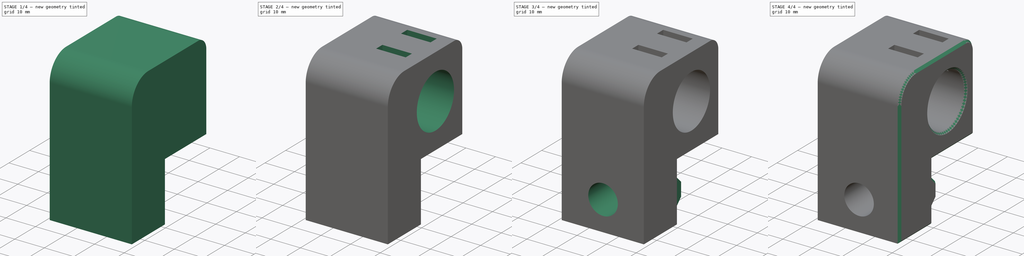
[diagram: build sequence overview — one tinted view per stage of 4, left to right]
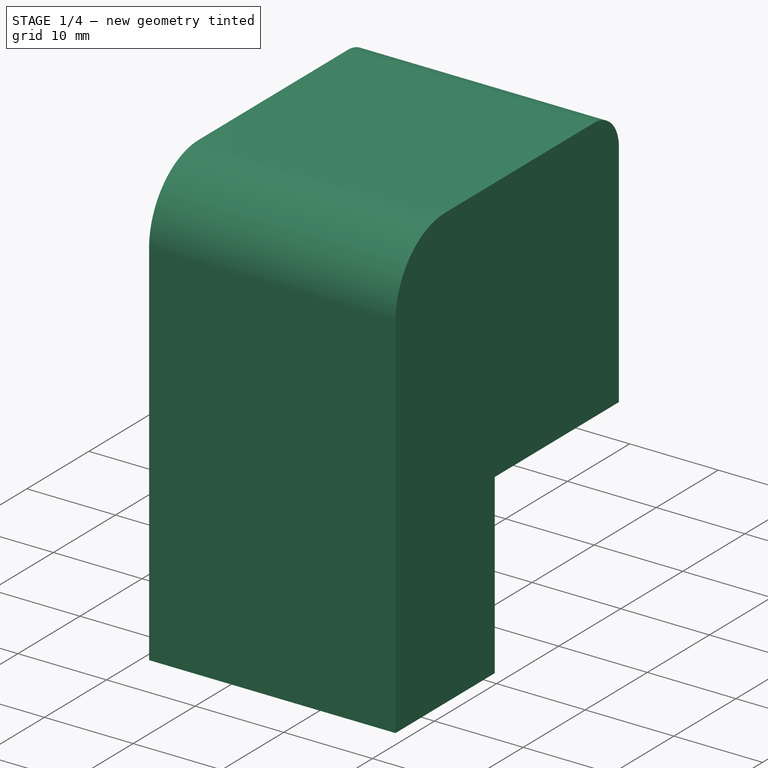
[diagram: stage 1 of 4 — iso view after this stage's code; geometry added in this stage tinted green]
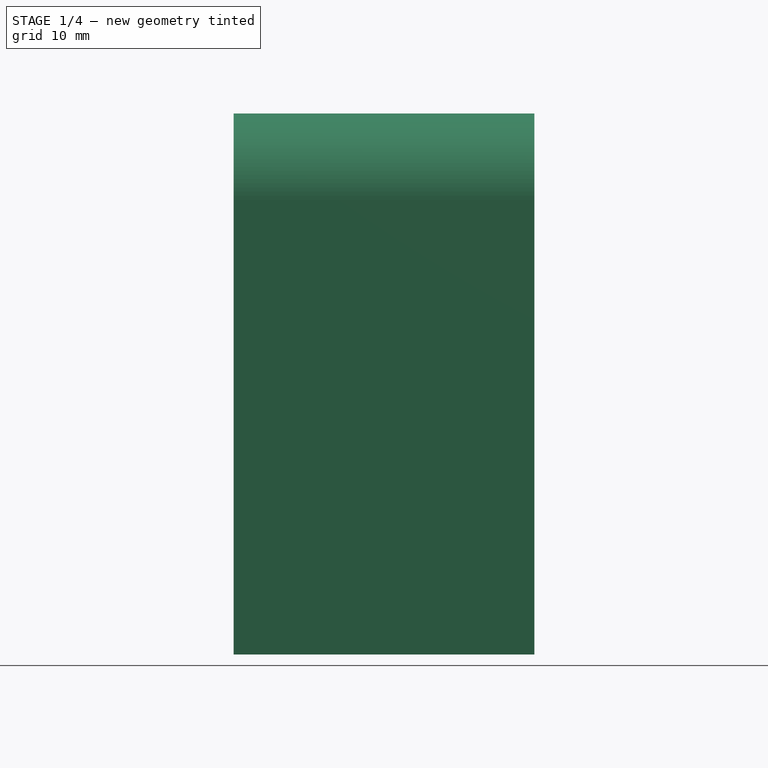
[diagram: stage 1 of 4 — front view after this stage's code; geometry added in this stage tinted green]
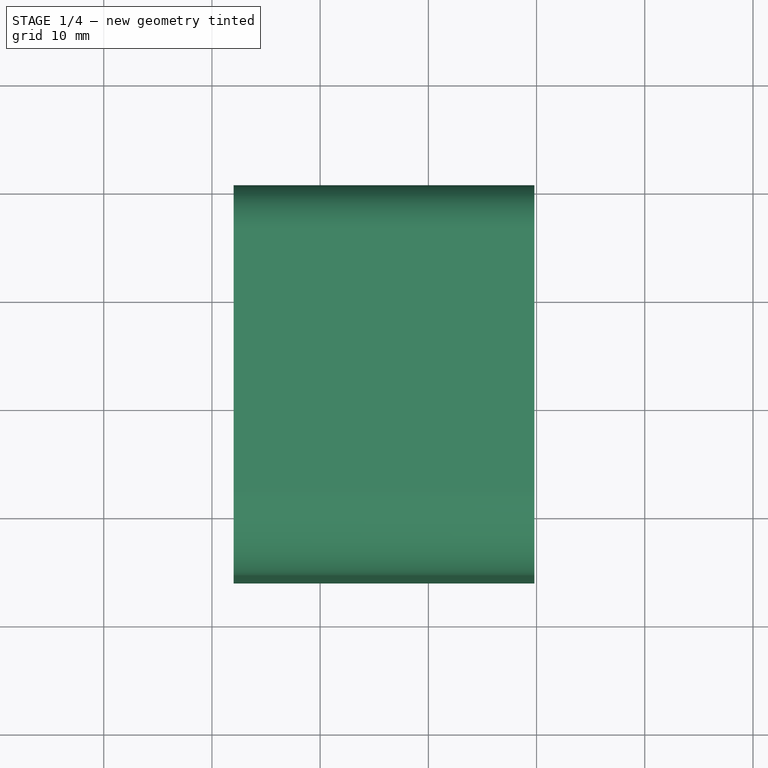
[diagram: stage 1 of 4 — top view after this stage's code; geometry added in this stage tinted green]
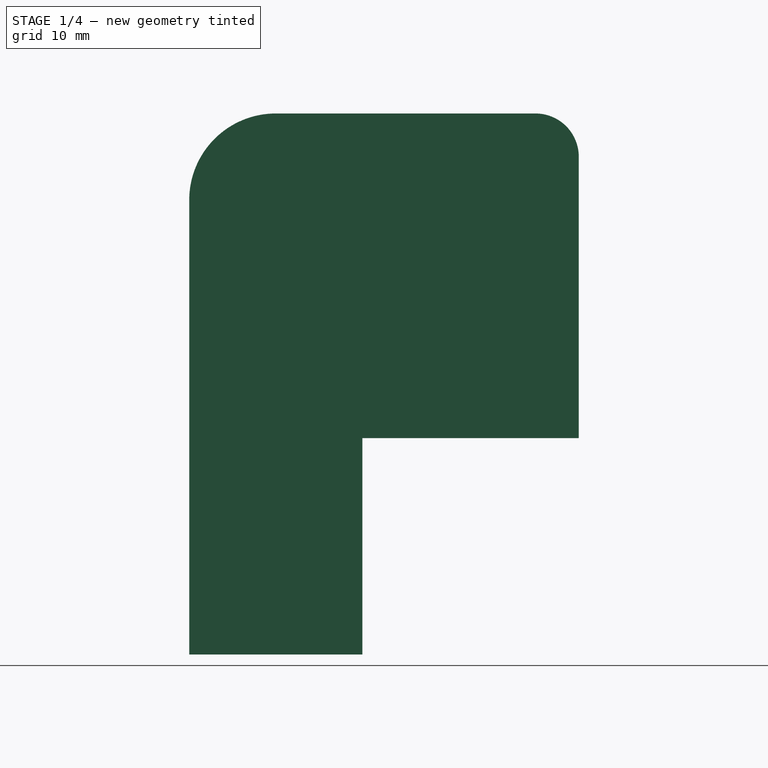
[diagram: stage 1 of 4 — right view after this stage's code; geometry added in this stage tinted green]
FCSTD DOCUMENT  (FreeCAD 1.0R39109 (Git))
Label: back-bearing-block-right
License: All rights reserved
LicenseURL: http://en.wikipedia.org/wiki/All_rights_reserved
objects: Sketcher::SketchObject×9, PartDesign::Pocket×7, PartDesign::Pad×2, App::Link×2, PartDesign::Chamfer×1, PartDesign::Body×1, App::Part×1
note: 49 computed .brp shape members not serialized (recipe doc carries the construction recipe); baked Part::Feature solids carry a one-line shape summary decoded from their .brp
EXTERNAL_REF file=../standard-stuff.FCStd obj=Body
EXTERNAL_REF file=../standard-stuff.FCStd obj=Group001

FEATURE [Sketcher::SketchObject] Sketch114
  ArcFitTolerance = 0
  AttachmentSupport = -> [YZ_Plane216]
  FullyConstrained = true
  MakeInternals = false
  MapMode = 5
  Placement = pos=(0,0,0) rot=(0.57735,0.57735,0.57735;2.0944rad)
  sketch-geometry (10):
    g0: LineSegment StartX=-20 StartY=0 StartZ=0 EndX=-20 EndY=20 EndZ=0
    g1: LineSegment StartX=-20 StartY=20 StartZ=0 EndX=0 EndY=20 EndZ=0
    g2: LineSegment StartX=0 StartY=20 StartZ=0 EndX=-9.8e-15 EndY=46 EndZ=0
    g3: LineSegment StartX=-4 StartY=50 StartZ=0 EndX=-28 EndY=50 EndZ=0
    g4: LineSegment StartX=-36 StartY=42 StartZ=0 EndX=-36 EndY=0 EndZ=0
    g5: LineSegment StartX=-20 StartY=0 StartZ=0 EndX=-36 EndY=0 EndZ=0
    g6: ArcOfCircle CenterX=-28 CenterY=42 CenterZ=0 NormalX=0 NormalY=0 NormalZ=1 AngleXU=0 Radius=8 StartAngle=1.5708 EndAngle=3.14159
    g7: GeomPoint [constr] X=-36 Y=50 Z=0
    g8: ArcOfCircle CenterX=-4 CenterY=46 CenterZ=0 NormalX=0 NormalY=0 NormalZ=1 AngleXU=0 Radius=4 StartAngle=3e-16 EndAngle=1.5708
    g9: GeomPoint [constr] X=0 Y=50 Z=0
  constraints (26):
    c: Vertical(g0)
    c: Coincident(g1,g0)
    c: PointOnObject(g1,g-2)
    c: Horizontal(g1)
    c: PointOnObject(g0,g-1)
    c: Equal(g0,g1)
    c: DistanceX(g1,g1) = 20
    c: Coincident(g2,g1)
    c: PointOnObject(g9,g-2)
    c: Horizontal(g3)
    c: PointOnObject(g4,g-1)
    c: Vertical(g4)
    c: Coincident(g5,g0)
    c: Coincident(g5,g4)
    c: DistanceX(g5,g5) = 16
    c: PointOnObject(g7,g3)
    c: PointOnObject(g7,g4)
    c: Tangent(g3,g6) = -1.5708
    c: Tangent(g4,g6) = -1.5708
    c: Radius(g6) = 8
    c: DistanceY(g9) = 50
    c: PointOnObject(g9,g2)
    c: PointOnObject(g9,g3)
    c: Tangent(g2,g8) = -1.5708
    c: Tangent(g3,g8) = -1.5708
    c: Radius(g8) = 4
FEATURE [PartDesign::Pad] Pad034
  Direction = (1,0,0)
  Length = 28
  Length2 = -0.2
  Placement = pos=(0,0,0) rot=(1,1,1;2.0944rad)
  Profile = -> Sketch114
  ReferenceAxis = -> Sketch114 [N_Axis]
  Reversed = true
  Suppressed = false
  Type = 4
FEATURE [Sketcher::SketchObject] Sketch115
  ArcFitTolerance = 0
  AttachmentOffset = pos=(0,0,-21.5) rot=(0,0,1;0rad)
  AttachmentSupport = -> [YZ_Plane216]
  FullyConstrained = true
  MakeInternals = false
  MapMode = 5
  Placement = pos=(-21.5,0,0) rot=(0.57735,0.57735,0.57735;2.0944rad)
  sketch-geometry (1):
    g0: Circle CenterX=-13 CenterY=35 CenterZ=0 NormalX=0 NormalY=0 NormalZ=1 AngleXU=0 Radius=11.1
  constraints (3):
    c: Diameter(g0) = 22.2
    c: DistanceX(g0) = -13
    c: DistanceY(g0) = 35
FEATURE [PartDesign::Pocket] Pocket057
  BaseFeature = -> Pad034
  Direction = (-1,0,0)
  Length = 5
  Length2 = 5
  Placement = pos=(0,0,0) rot=(1,1,1;2.0944rad)
  Profile = -> Sketch115
  ReferenceAxis = -> Sketch115 [N_Axis]
  Suppressed = false
  Type = 1
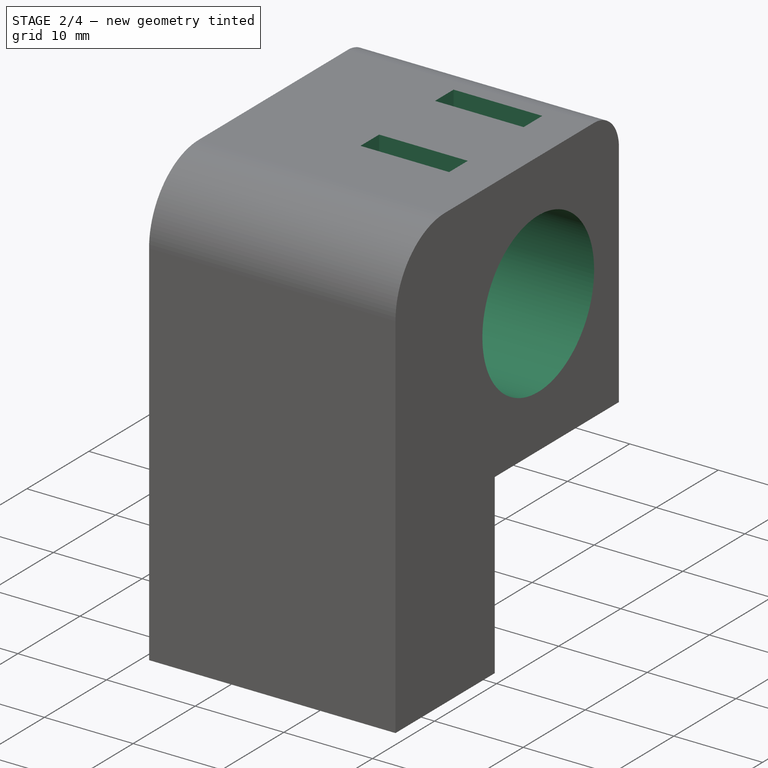
[diagram: stage 2 of 4 — iso view after this stage's code; geometry added in this stage tinted green]
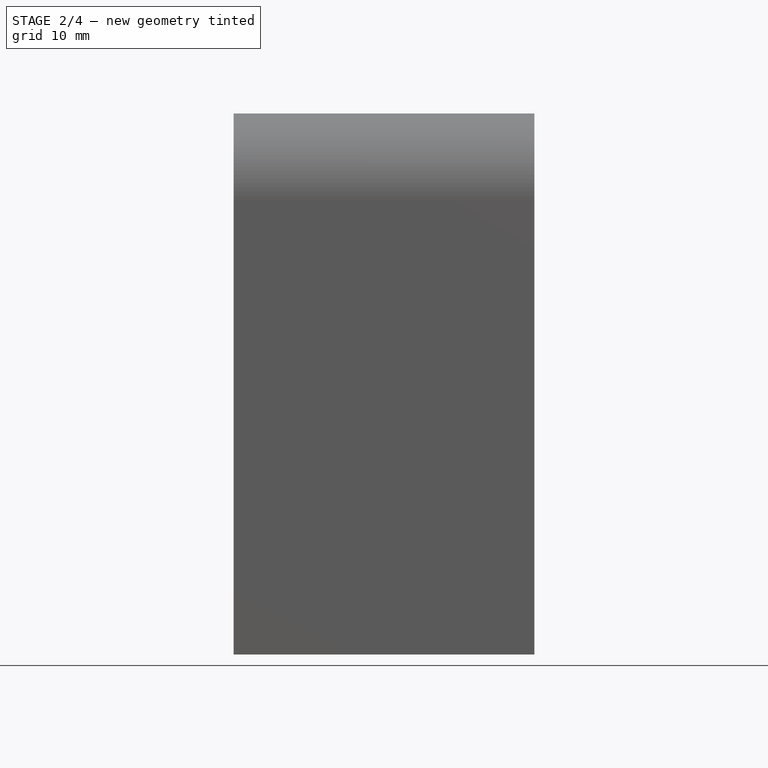
[diagram: stage 2 of 4 — front view after this stage's code; geometry added in this stage tinted green]
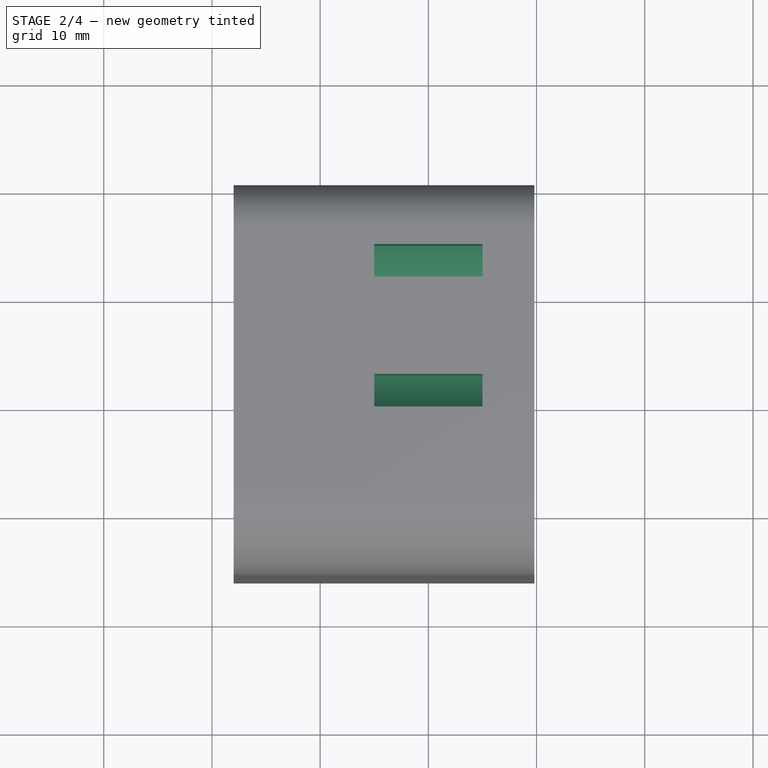
[diagram: stage 2 of 4 — top view after this stage's code; geometry added in this stage tinted green]
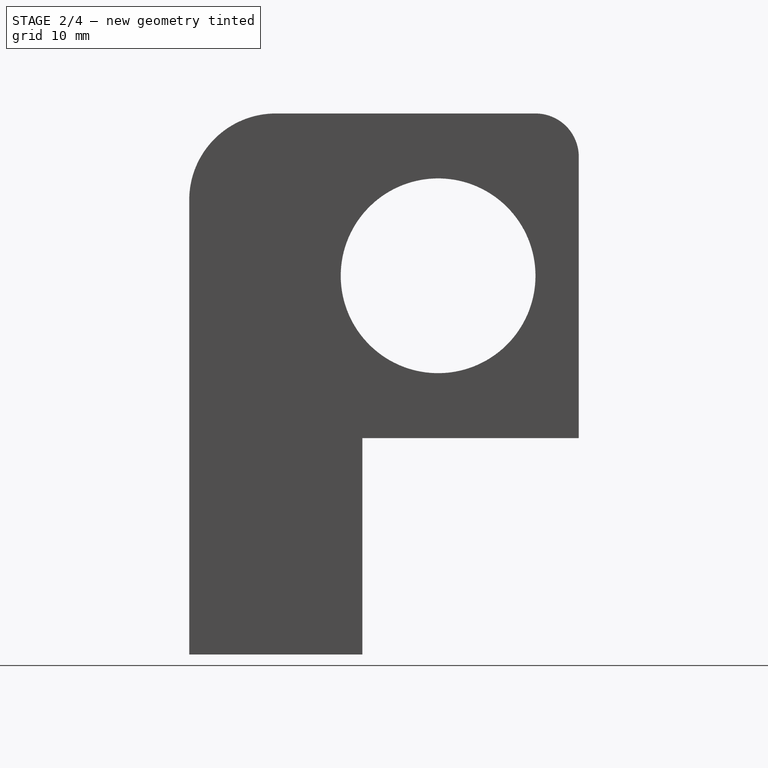
[diagram: stage 2 of 4 — right view after this stage's code; geometry added in this stage tinted green]
FEATURE [Sketcher::SketchObject] Sketch315
  ArcFitTolerance = 0
  AttachmentOffset = pos=(0,0,-21.5) rot=(0,0,1;0rad)
  AttachmentSupport = -> [YZ_Plane216]
  FullyConstrained = true
  MakeInternals = false
  MapMode = 5
  Placement = pos=(-21.5,0,0) rot=(0.57735,0.57735,0.57735;2.0944rad)
  sketch-geometry (1):
    g0: Circle CenterX=-13 CenterY=35 CenterZ=0 NormalX=0 NormalY=0 NormalZ=1 AngleXU=0 Radius=9
  constraints (3):
    c: Diameter(g0) = 18
    c: DistanceY(g0) = 35
    c: DistanceX(g0) = -13
FEATURE [PartDesign::Pocket] Pocket199
  BaseFeature = -> Pocket057
  Direction = (-1,0,0)
  Length = 5
  Length2 = 5
  Placement = pos=(0,0,0) rot=(1,1,1;2.0944rad)
  Profile = -> Sketch315
  ReferenceAxis = -> Sketch315 [N_Axis]
  Reversed = true
  Suppressed = false
  Type = 1
FEATURE [Sketcher::SketchObject] Sketch316
  ArcFitTolerance = 0
  AttachmentOffset = pos=(0,0,-10) rot=(0,0,1;0rad)
  AttachmentSupport = -> [YZ_Plane216]
  FullyConstrained = true
  MakeInternals = false
  MapMode = 5
  Placement = pos=(-10,0,0) rot=(0.57735,0.57735,0.57735;2.0944rad)
  sketch-geometry (9):
    g0: GeomPoint [constr] X=-13 Y=35 Z=0
    g1: LineSegment StartX=-8.5 StartY=50 StartZ=0 EndX=-5.5 EndY=50 EndZ=0
    g2: LineSegment StartX=-5.5 StartY=50 StartZ=0 EndX=-5.5 EndY=35 EndZ=0
    g3: LineSegment StartX=-5.5 StartY=35 StartZ=0 EndX=-8.5 EndY=35 EndZ=0
    g4: LineSegment StartX=-8.5 StartY=35 StartZ=0 EndX=-8.5 EndY=50 EndZ=0
    g5: LineSegment StartX=-20.5 StartY=50 StartZ=0 EndX=-17.5 EndY=50 EndZ=0
    g6: LineSegment StartX=-17.5 StartY=50 StartZ=0 EndX=-17.5 EndY=35 EndZ=0
    g7: LineSegment StartX=-17.5 StartY=35 StartZ=0 EndX=-20.5 EndY=35 EndZ=0
    g8: LineSegment StartX=-20.5 StartY=35 StartZ=0 EndX=-20.5 EndY=50 EndZ=0
  constraints (25):
    c: DistanceY(g0) = 35
    c: DistanceX(g0) = -13
    c: Coincident(g1,g2)
    c: Coincident(g2,g3)
    c: Coincident(g3,g4)
    c: Coincident(g4,g1)
    c: Horizontal(g1)
    c: Horizontal(g3)
    c: Vertical(g2)
    c: Vertical(g4)
    c: Coincident(g5,g6)
    c: Coincident(g6,g7)
    c: Coincident(g7,g8)
    c: Coincident(g8,g5)
    c: Horizontal(g5)
    c: Horizontal(g7)
    c: Vertical(g6)
    c: Vertical(g8)
    c: Equal(g3,g7)
    c: Horizontal(g5,g1)
    c: Symmetric(g6,g3,g0)
    c: Horizontal(g6,g3)
    c: DistanceY(g1) = 50
    c: DistanceX(g1,g1) = 3
    c: DistanceX(g6,g3) = 9
FEATURE [PartDesign::Pocket] Pocket200
  BaseFeature = -> Pocket199
  Direction = (-1,0,0)
  Length = 10
  Length2 = 5
  Midplane = true
  Placement = pos=(0,0,0) rot=(1,1,1;2.0944rad)
  Profile = -> Sketch316
  ReferenceAxis = -> Sketch316 [N_Axis]
  Suppressed = false
  Type = 0
FEATURE [Sketcher::SketchObject] Sketch317
  ArcFitTolerance = 0
  AttachmentOffset = pos=(0,0,12) rot=(0,0,1;0rad)
  AttachmentSupport = -> [XZ_Plane216]
  FullyConstrained = true
  MakeInternals = false
  MapMode = 5
  Placement = pos=(0,-12,2.7e-15) rot=(1,0,0;1.5708rad)
  sketch-geometry (1):
    g0: Circle CenterX=-17.5 CenterY=35 CenterZ=0 NormalX=0 NormalY=0 NormalZ=1 AngleXU=0 Radius=4
  constraints (3):
    c: DistanceX(g0) = -17.5
    c: DistanceY(g0) = 35
    c: Diameter(g0) = 8
FEATURE [PartDesign::Pocket] Pocket201
  BaseFeature = -> Pocket200
  Direction = (0,1,-2e-16)
  Length = 5
  Length2 = 5
  Placement = pos=(0,0,0) rot=(1,1,1;2.0944rad)
  Profile = -> Sketch317
  ReferenceAxis = -> Sketch317 [N_Axis]
  Suppressed = false
  Type = 1
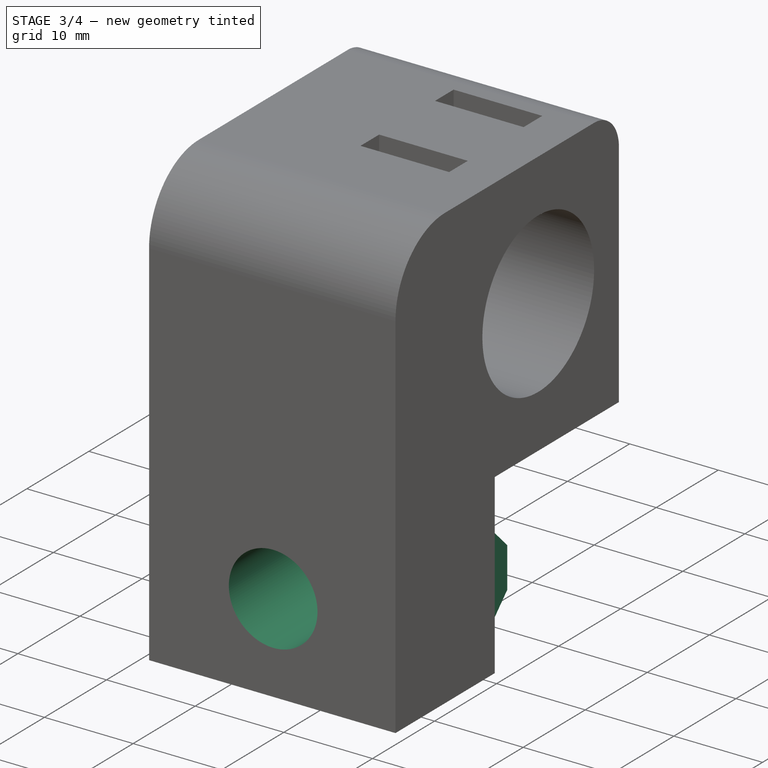
[diagram: stage 3 of 4 — iso view after this stage's code; geometry added in this stage tinted green]
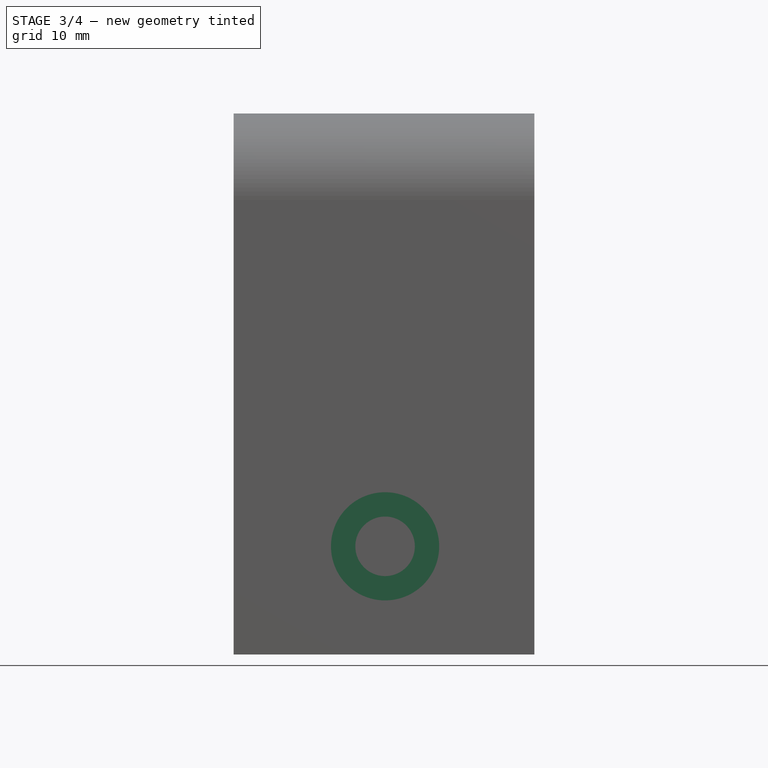
[diagram: stage 3 of 4 — front view after this stage's code; geometry added in this stage tinted green]
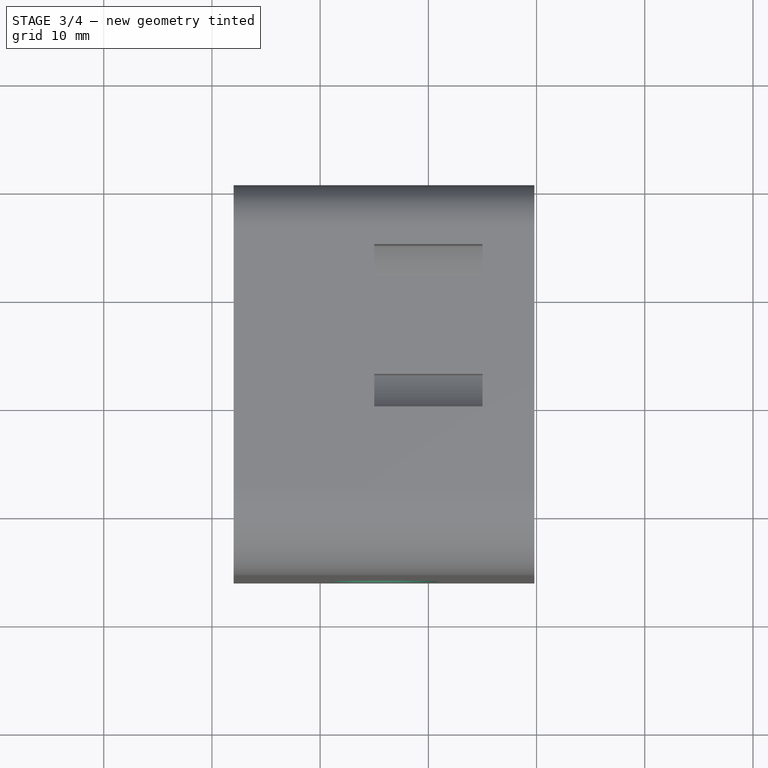
[diagram: stage 3 of 4 — top view after this stage's code; geometry added in this stage tinted green]
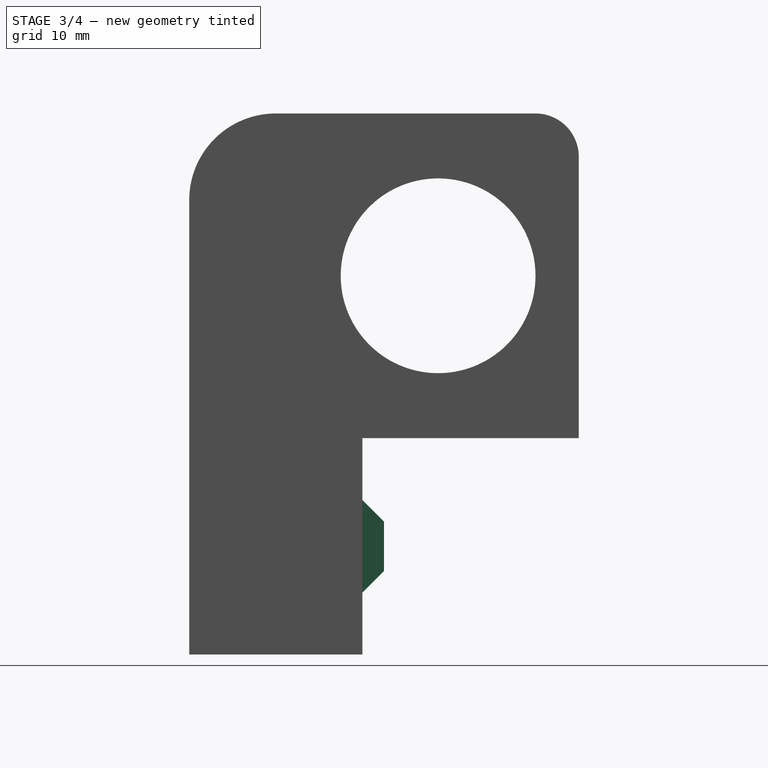
[diagram: stage 3 of 4 — right view after this stage's code; geometry added in this stage tinted green]
FEATURE [Sketcher::SketchObject] Sketch318
  ArcFitTolerance = 0
  AttachmentSupport = -> [XZ_Plane216]
  FullyConstrained = true
  MakeInternals = false
  MapMode = 5
  Placement = pos=(0,0,0) rot=(1,0,0;1.5708rad)
  sketch-geometry (1):
    g0: Circle CenterX=-14 CenterY=10 CenterZ=0 NormalX=0 NormalY=0 NormalZ=1 AngleXU=0 Radius=2.75
  constraints (3):
    c: DistanceY(g0) = 10
    c: DistanceX(g0) = -14
    c: Diameter(g0) = 5.5
FEATURE [PartDesign::Pocket] Pocket202
  BaseFeature = -> Pocket201
  Direction = (0,1,-2e-16)
  Length = 5
  Length2 = 5
  Midplane = true
  Placement = pos=(0,0,0) rot=(1,1,1;2.0944rad)
  Profile = -> Sketch318
  ReferenceAxis = -> Sketch318 [N_Axis]
  Suppressed = false
  Type = 1
FEATURE [Sketcher::SketchObject] Sketch319
  ArcFitTolerance = 0
  AttachmentOffset = pos=(0,0,24) rot=(0,0,1;0rad)
  AttachmentSupport = -> [XZ_Plane216]
  FullyConstrained = true
  MakeInternals = false
  MapMode = 5
  Placement = pos=(0,-24,5.3e-15) rot=(1,0,0;1.5708rad)
  sketch-geometry (1):
    g0: Circle CenterX=-14 CenterY=10 CenterZ=0 NormalX=0 NormalY=0 NormalZ=1 AngleXU=0 Radius=5
  constraints (3):
    c: Diameter(g0) = 10
    c: DistanceX(g0) = -14
    c: DistanceY(g0) = 10
FEATURE [PartDesign::Pocket] Pocket203
  BaseFeature = -> Pocket202
  Direction = (0,1,-2e-16)
  Length = 5
  Length2 = 5
  Placement = pos=(0,0,0) rot=(1,1,1;2.0944rad)
  Profile = -> Sketch319
  ReferenceAxis = -> Sketch319 [N_Axis]
  Reversed = true
  Suppressed = false
  Type = 1
FEATURE [Sketcher::SketchObject] Sketch372
  ArcFitTolerance = 0
  AttachmentSupport = -> [YZ_Plane216]
  FullyConstrained = true
  MakeInternals = false
  MapMode = 5
  Placement = pos=(0,0,0) rot=(0.57735,0.57735,0.57735;2.0944rad)
  sketch-geometry (8):
    g0: LineSegment StartX=-20 StartY=14.2757 StartZ=0 EndX=-18 EndY=12.2757 EndZ=0
    g1: LineSegment StartX=-18 StartY=12.2757 StartZ=0 EndX=-18 EndY=7.72426 EndZ=0
    g2: LineSegment StartX=-18 StartY=7.72426 StartZ=0 EndX=-20 EndY=5.72426 EndZ=0
    g3: LineSegment StartX=-20 StartY=5.72426 StartZ=0 EndX=-20 EndY=14.2757 EndZ=0
    g4: GeomPoint [constr] X=-20 Y=10 Z=0
    g5: GeomPoint [constr] X=-18 Y=10 Z=0
    g6: GeomPoint [constr] X=-18 Y=12.7 Z=0
    g7: GeomPoint [constr] X=-18 Y=7.3 Z=0
  constraints (18):
    c: Coincident(g0,g1)
    c: Vertical(g1)
    c: Coincident(g1,g2)
    c: Coincident(g2,g3)
    c: Coincident(g3,g0)
    c: Vertical(g3)
    c: Perpendicular(g2,g0)
    c: Angle(g0) = -0.785398
    c: DistanceX(g4) = -20
    c: DistanceY(g4) = 10
    c: Symmetric(g2,g0,g4)
    c: DistanceX(g0,g0) = 2
    c: PointOnObject(g5,g1)
    c: Horizontal(g5,g4)
    c: Symmetric(g6,g7,g5)
    c: Vertical(g7,g5)
    c: Distance(g6,g0) = 0.3
    c: DistanceY(g7,g6) = 5.4
FEATURE [PartDesign::Pad] Pad095
  BaseFeature = -> Pocket203
  Direction = (1,0,0)
  Length = 28
  Length2 = -0.2
  Placement = pos=(0,0,0) rot=(1,1,1;2.0944rad)
  Profile = -> Sketch372
  ReferenceAxis = -> Sketch372 [N_Axis]
  Reversed = true
  Suppressed = false
  Type = 4
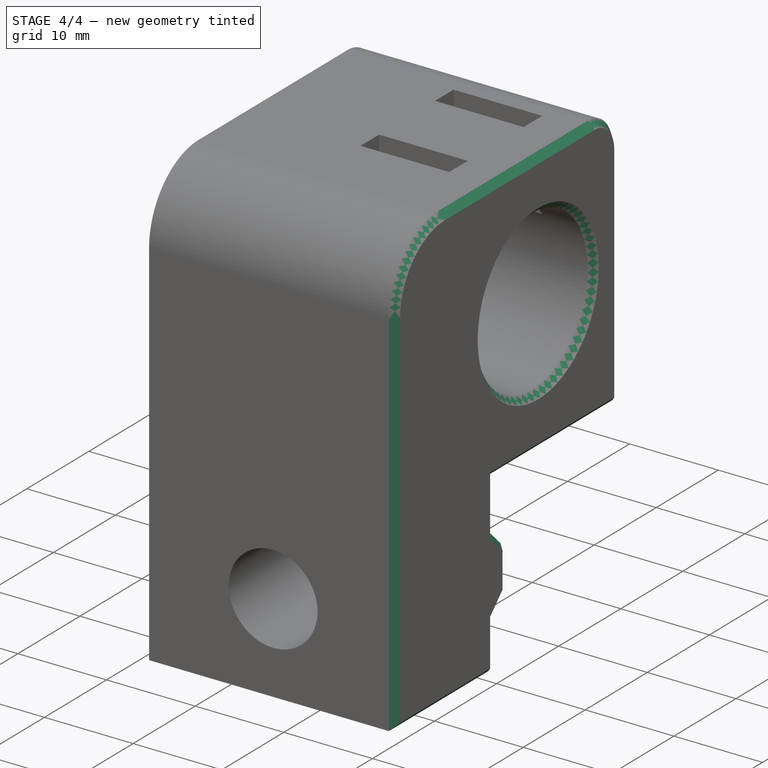
[diagram: stage 4 of 4 — iso view after this stage's code; geometry added in this stage tinted green]
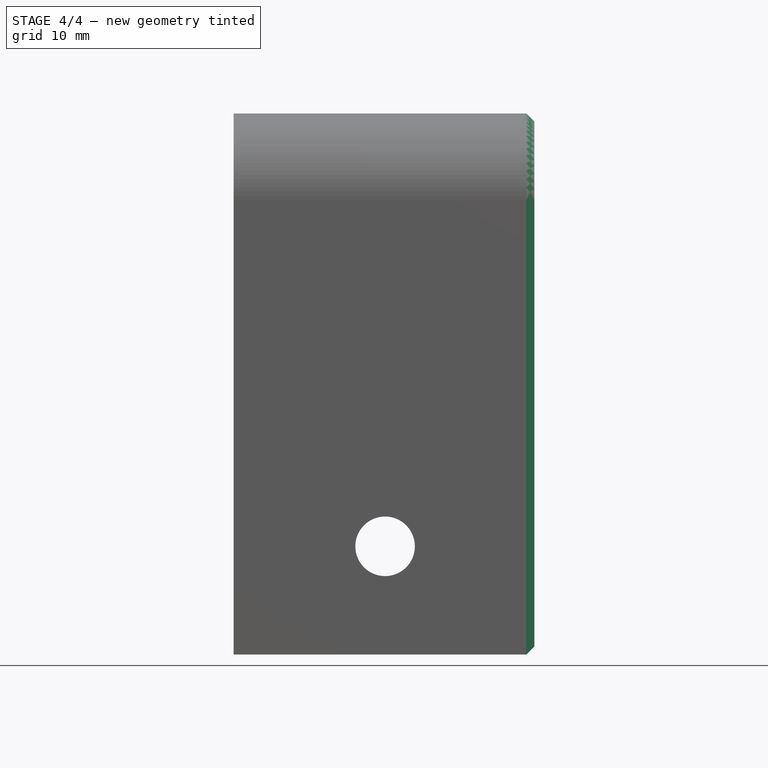
[diagram: stage 4 of 4 — front view after this stage's code; geometry added in this stage tinted green]
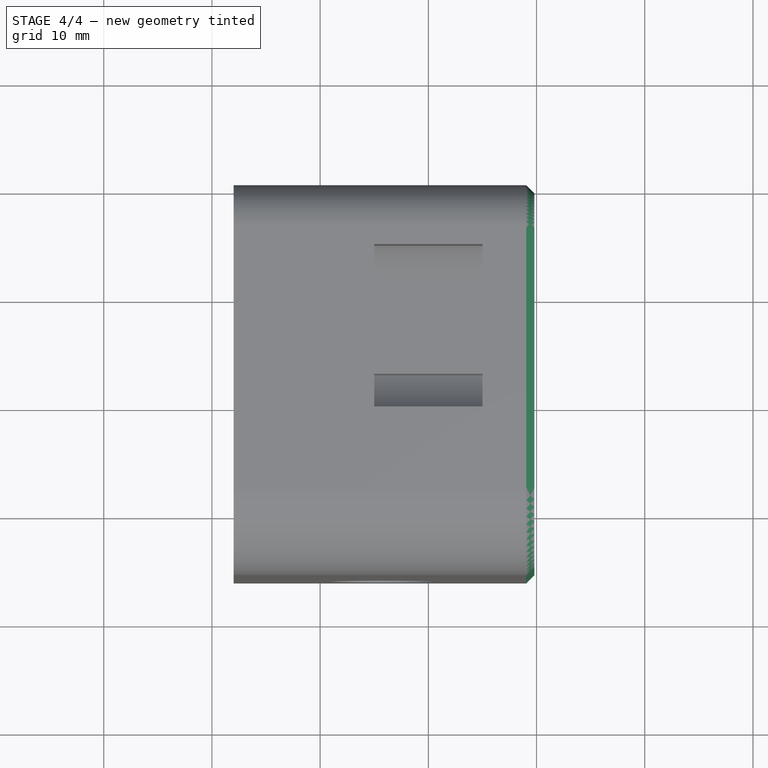
[diagram: stage 4 of 4 — top view after this stage's code; geometry added in this stage tinted green]
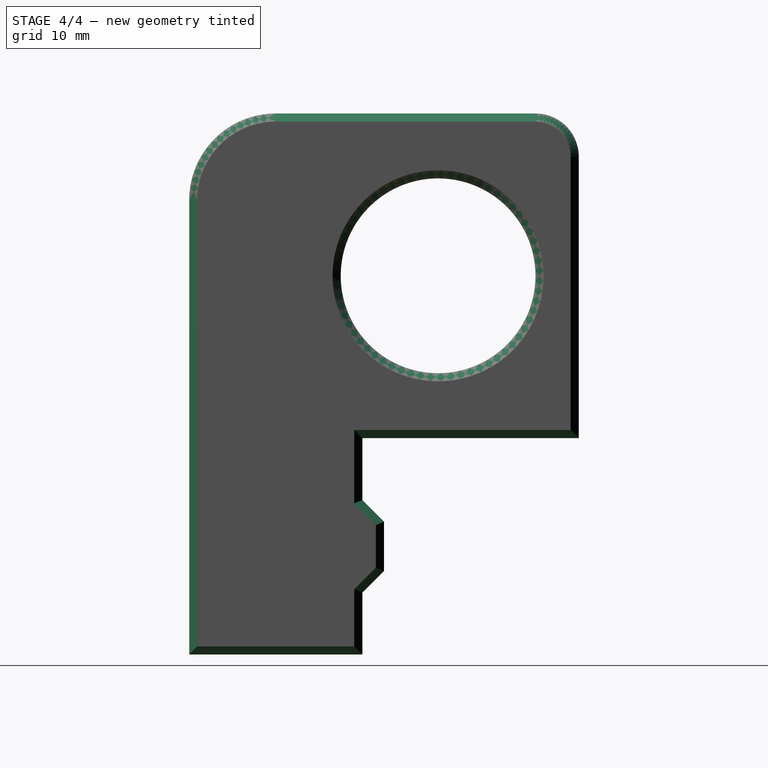
[diagram: stage 4 of 4 — right view after this stage's code; geometry added in this stage tinted green]
FEATURE [Sketcher::SketchObject] Sketch373
  ArcFitTolerance = 0
  AttachmentOffset = pos=(0,0,10) rot=(0,0,1;0rad)
  AttachmentSupport = -> [XY_Plane216]
  FullyConstrained = true
  MakeInternals = false
  MapMode = 5
  Placement = pos=(0,0,10) rot=(0,0,1;0rad)
  sketch-geometry (5):
    g0: LineSegment StartX=-22 StartY=-18 StartZ=0 EndX=-6 EndY=-18 EndZ=0
    g1: LineSegment StartX=-6 StartY=-18 StartZ=0 EndX=-6 EndY=-20 EndZ=0
    g2: LineSegment StartX=-6 StartY=-20 StartZ=0 EndX=-22 EndY=-20 EndZ=0
    g3: LineSegment StartX=-22 StartY=-20 StartZ=0 EndX=-22 EndY=-18 EndZ=0
    g4: GeomPoint [constr] X=-14 Y=-20 Z=0
  constraints (13):
    c: Coincident(g0,g1)
    c: Coincident(g1,g2)
    c: Coincident(g2,g3)
    c: Coincident(g3,g0)
    c: Horizontal(g0)
    c: Horizontal(g2)
    c: Vertical(g1)
    c: Vertical(g3)
    c: DistanceY(g4) = -20
    c: DistanceX(g4) = -14
    c: DistanceY(g1,g1) = 2
    c: Symmetric(g2,g1,g4)
    c: DistanceX(g0,g0) = 16
FEATURE [PartDesign::Pocket] Pocket234
  BaseFeature = -> Pad095
  Direction = (0,0,-1)
  Length = 20
  Length2 = 5
  Midplane = true
  Placement = pos=(0,0,0) rot=(1,1,1;2.0944rad)
  Profile = -> Sketch373
  ReferenceAxis = -> Sketch373 [N_Axis]
  Refine = true
  Suppressed = false
  Type = 0
FEATURE [PartDesign::Chamfer] Chamfer
  Angle = 45
  Base = -> Pocket234 [Face33]
  BaseFeature = -> Pocket234
  ChamferType = 0
  FlipDirection = false
  Placement = pos=(0,0,0) rot=(1,1,1;2.0944rad)
  Size = 0.75
  Size2 = 1
  SupportTransform = false
  Suppressed = false
  UseAllEdges = false
FEATURE [PartDesign::Body] Body082  label="z-motion-back-bearing-block-right"
  AllowCompound = false
  Group = -> [Sketch114,Pad034,Sketch115,Pocket057,Sketch315,Pocket199,Sketch316,Pocket200,Sketch317,Pocket201,Sketch318,Pocket202,Sketch319,Pocket203,Sketch372,Pad095,Sketch373,Pocket234,Chamfer]
  Origin = -> Origin216
  Tip = -> Chamfer
FEATURE [App::Link] Link  label="bearing"
  LinkPlacement = pos=(-25,-13,35) rot=(0,1,0;1.5708rad)
  LinkedObject = -> <external ../standard-stuff.FCStd>#Body
  Placement = pos=(-25,-13,35) rot=(0,1,0;1.5708rad)
FEATURE [App::Link] Link001  label="pulley"
  LinkPlacement = pos=(-10,-13,35) rot=(0,-1,0;1.5708rad)
  LinkedObject = -> <external ../standard-stuff.FCStd>#Group001 [Body119.]
  Placement = pos=(-10,-13,35) rot=(0,-1,0;1.5708rad)
FEATURE [App::Part] Part  label="main"
  Group = -> [Body082,Link,Link001]
  Origin = -> Origin
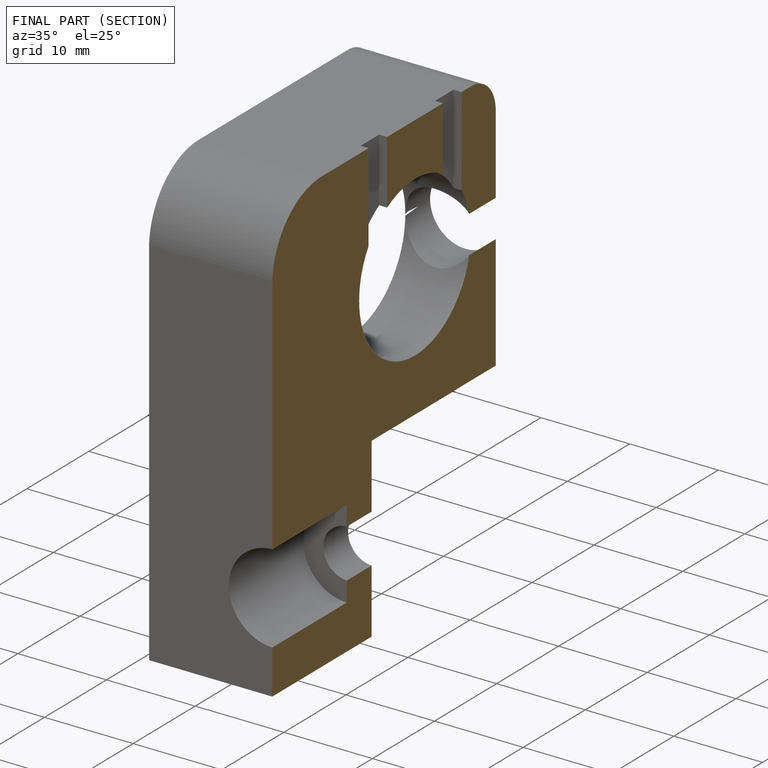
[diagram: finished part — half-section view (interior)]
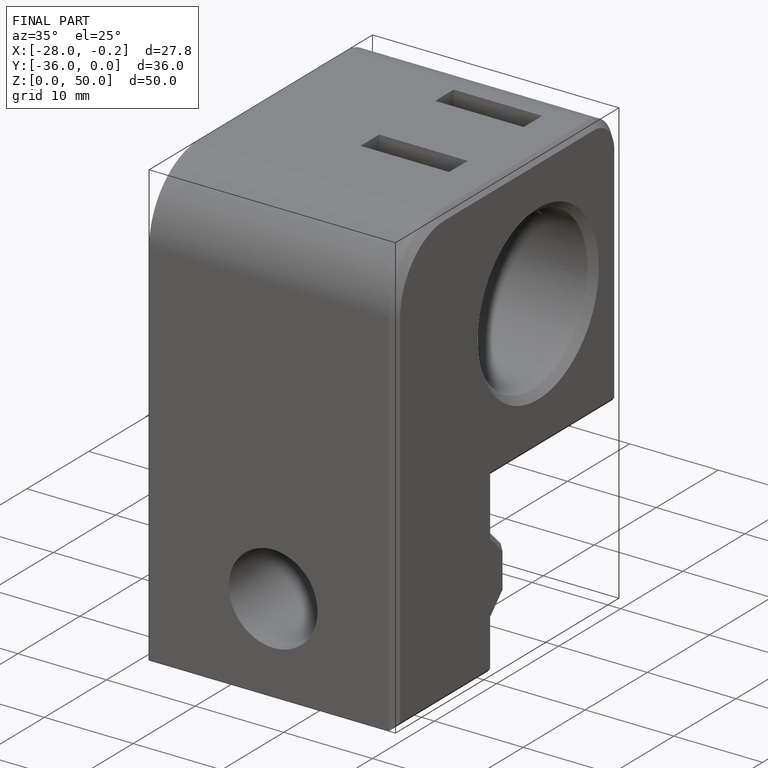
[diagram: finished part — iso view with bounding-box wireframe]
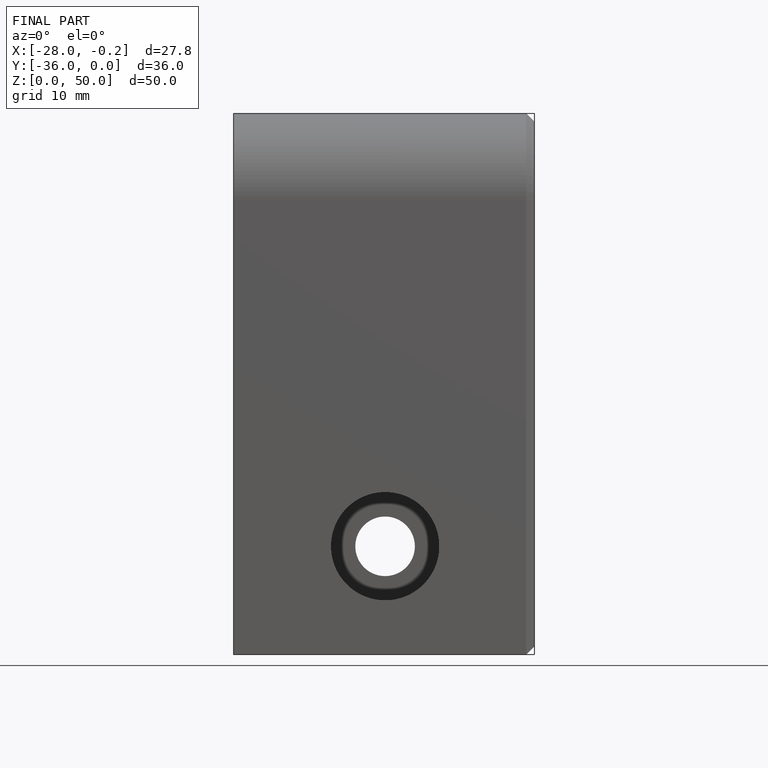
[diagram: finished part — front view with bounding-box wireframe]
